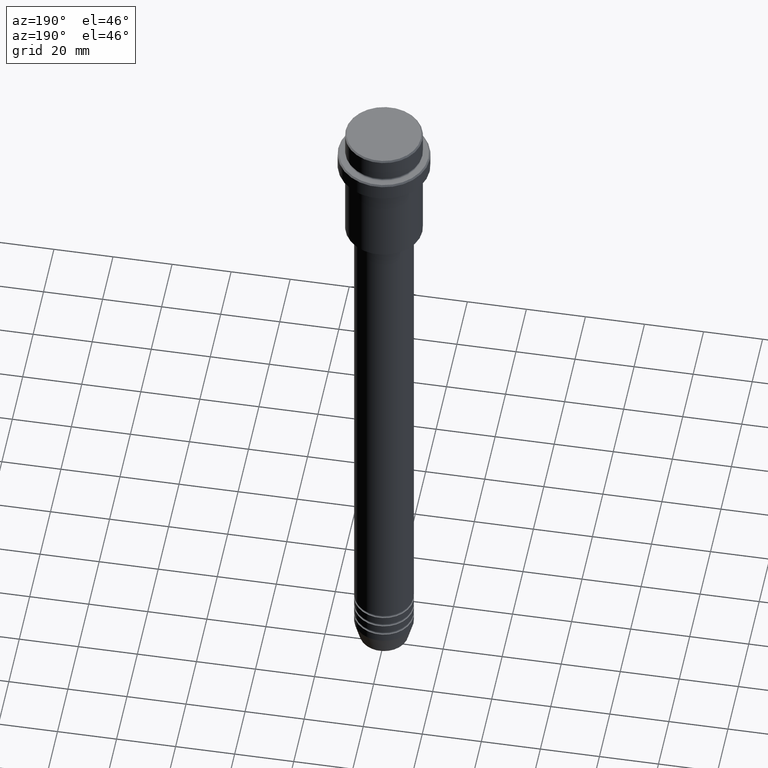
[diagram: clean part render]
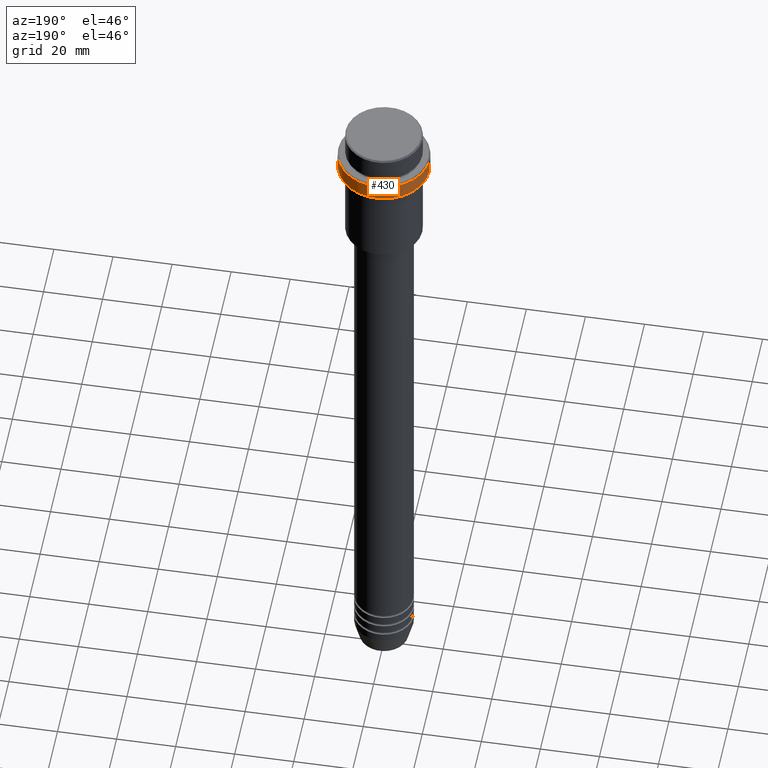
[diagram: same view with one face highlighted and labeled with its STEP entity id]
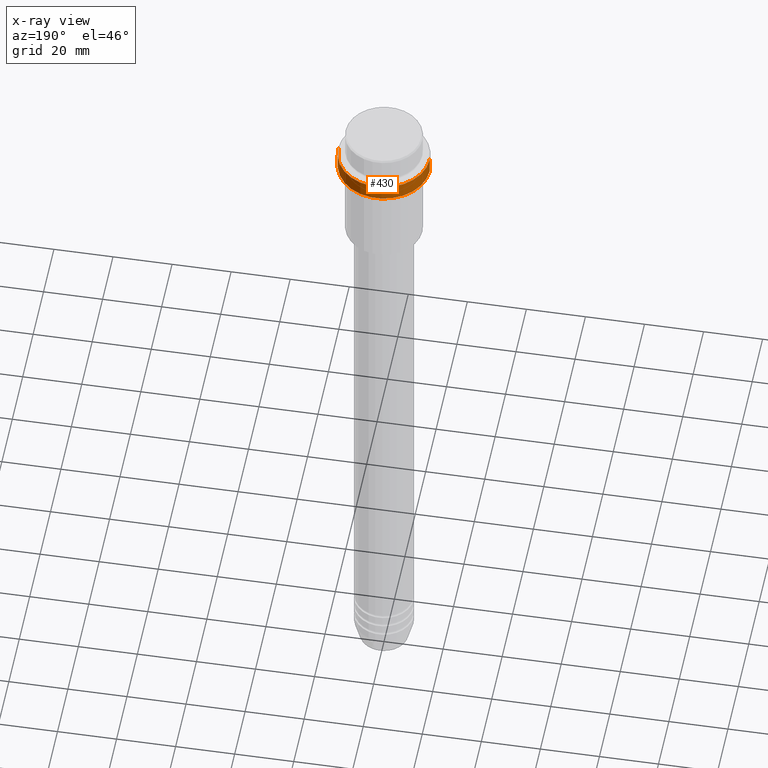
[diagram: x-ray of the same camera — body ghosted, the highlighted face saturated]
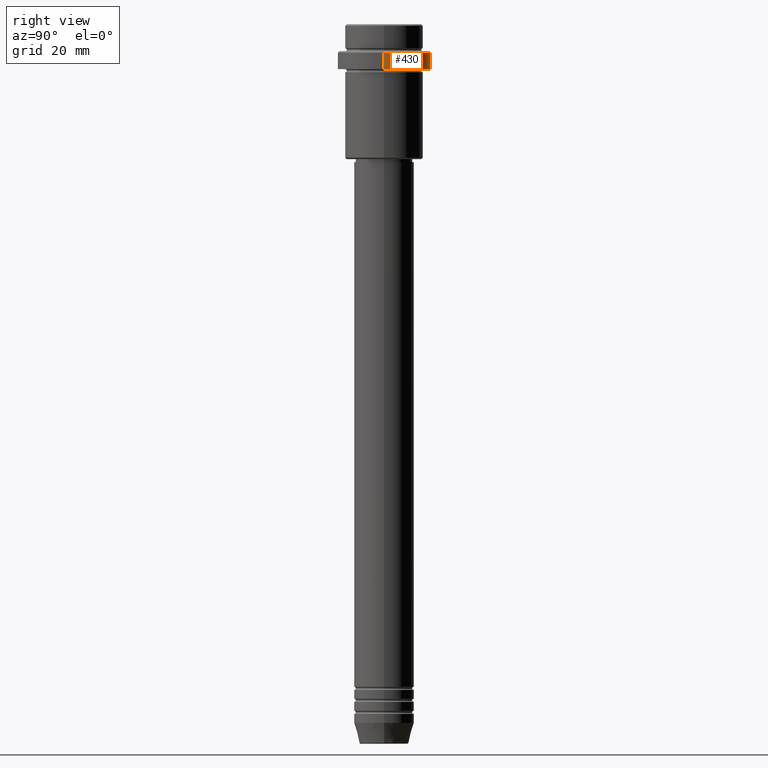
[diagram: same view with one face highlighted and labeled with its STEP entity id]
A machine part, auxiliary view. The second image highlights one B-rep face of the part: STEP entity #430.
The next image is the same camera in x-ray: the body ghosted, the highlighted face saturated — about 0% of this face is hidden behind the body in this view.
A second angle (right view) of the same face is appended — the face is thin or edge-on in the first view.
In plain terms, the highlighted cylindrical surface (partial cylindrical patch) has radius 15.5 mm, axis along (-0, -0, 1).
Its self-contained STEP definition (entity closure, byte-faithful):
#51 = DIRECTION ( 'NONE',  ( 1.000000000000000000, 0.000000000000000000, 0.000000000000000000 ) ) ;
#70 = CYLINDRICAL_SURFACE ( 'NONE', #279, 15.50000000000000000 ) ;
#89 = ORIENTED_EDGE ( 'NONE', *, *, #990, .F. ) ;
#103 = DIRECTION ( 'NONE',  ( -0.000000000000000000, -0.000000000000000000, 1.000000000000000000 ) ) ;
#126 = EDGE_CURVE ( 'NONE', #1339, #1321, #968, .T. ) ;
#164 = AXIS2_PLACEMENT_3D ( 'NONE', #425, #226, #846 ) ;
#169 = CARTESIAN_POINT ( 'NONE',  ( -15.50000000000000000, 1.898202538678397557E-15, -9.500000000000014211 ) ) ;
#217 = DIRECTION ( 'NONE',  ( -0.000000000000000000, -0.000000000000000000, 1.000000000000000000 ) ) ;
#226 = DIRECTION ( 'NONE',  ( -0.000000000000000000, -0.000000000000000000, 1.000000000000000000 ) ) ;
#267 = DIRECTION ( 'NONE',  ( -0.000000000000000000, -0.000000000000000000, 1.000000000000000000 ) ) ;
#274 = AXIS2_PLACEMENT_3D ( 'NONE', #549, #320, #1293 ) ;
#279 = AXIS2_PLACEMENT_3D ( 'NONE', #698, #267, #51 ) ;
#286 = FACE_OUTER_BOUND ( 'NONE', #600, .T. ) ;
#307 = ORIENTED_EDGE ( 'NONE', *, *, #578, .T. ) ;
#320 = DIRECTION ( 'NONE',  ( 0.000000000000000000, 0.000000000000000000, -1.000000000000000000 ) ) ;
#352 = CARTESIAN_POINT ( 'NONE',  ( 15.50000000000000000, 0.000000000000000000, -15.00000000000000178 ) ) ;
#364 = CARTESIAN_POINT ( 'NONE',  ( 15.50000000000000000, 0.000000000000000000, -9.500000000000014211 ) ) ;
#425 = CARTESIAN_POINT ( 'NONE',  ( 0.000000000000000000, 0.000000000000000000, -15.00000000000000178 ) ) ;
#430 = ADVANCED_FACE ( 'NONE', ( #286 ), #70, .T. ) ;
#549 = CARTESIAN_POINT ( 'NONE',  ( 0.000000000000000000, 0.000000000000000000, -9.500000000000014211 ) ) ;
#578 = EDGE_CURVE ( 'NONE', #828, #1339, #814, .T. ) ;
#600 = EDGE_LOOP ( 'NONE', ( #307, #642, #1387, #89 ) ) ;
#642 = ORIENTED_EDGE ( 'NONE', *, *, #126, .T. ) ;
#698 = CARTESIAN_POINT ( 'NONE',  ( 0.000000000000000000, 0.000000000000000000, 0.000000000000000000 ) ) ;
#774 = VECTOR ( 'NONE', #217, 1000.000000000000000 ) ;
#812 = CARTESIAN_POINT ( 'NONE',  ( -15.50000000000000000, 1.898202538678397557E-15, -15.00000000000000178 ) ) ;
#814 = CIRCLE ( 'NONE', #164, 15.50000000000000000 ) ;
#828 = VERTEX_POINT ( 'NONE', #352 ) ;
#846 = DIRECTION ( 'NONE',  ( 1.000000000000000000, 0.000000000000000000, 0.000000000000000000 ) ) ;
#870 = LINE ( 'NONE', #1306, #774 ) ;
#968 = LINE ( 'NONE', #1078, #1344 ) ;
#990 = EDGE_CURVE ( 'NONE', #828, #1177, #870, .T. ) ;
#991 = EDGE_CURVE ( 'NONE', #1321, #1177, #1327, .T. ) ;
#1078 = CARTESIAN_POINT ( 'NONE',  ( -15.50000000000000000, 1.898202538678397557E-15, 0.000000000000000000 ) ) ;
#1177 = VERTEX_POINT ( 'NONE', #364 ) ;
#1293 = DIRECTION ( 'NONE',  ( 1.000000000000000000, 0.000000000000000000, 0.000000000000000000 ) ) ;
#1306 = CARTESIAN_POINT ( 'NONE',  ( 15.50000000000000000, 0.000000000000000000, 0.000000000000000000 ) ) ;
#1321 = VERTEX_POINT ( 'NONE', #169 ) ;
#1327 = CIRCLE ( 'NONE', #274, 15.50000000000000000 ) ;
#1339 = VERTEX_POINT ( 'NONE', #812 ) ;
#1344 = VECTOR ( 'NONE', #103, 1000.000000000000000 ) ;
#1387 = ORIENTED_EDGE ( 'NONE', *, *, #991, .T. ) ;